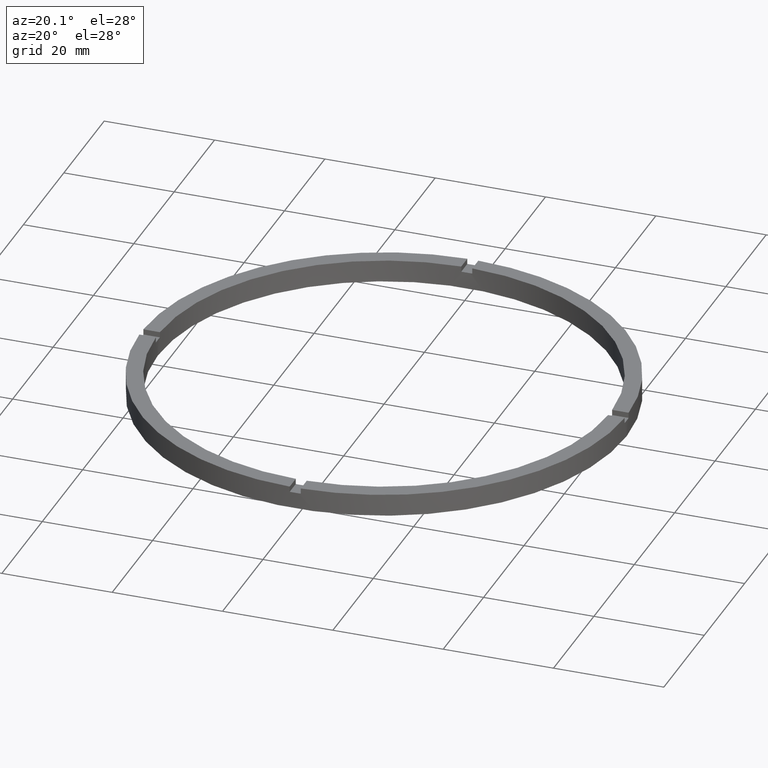
[diagram: clean part render]
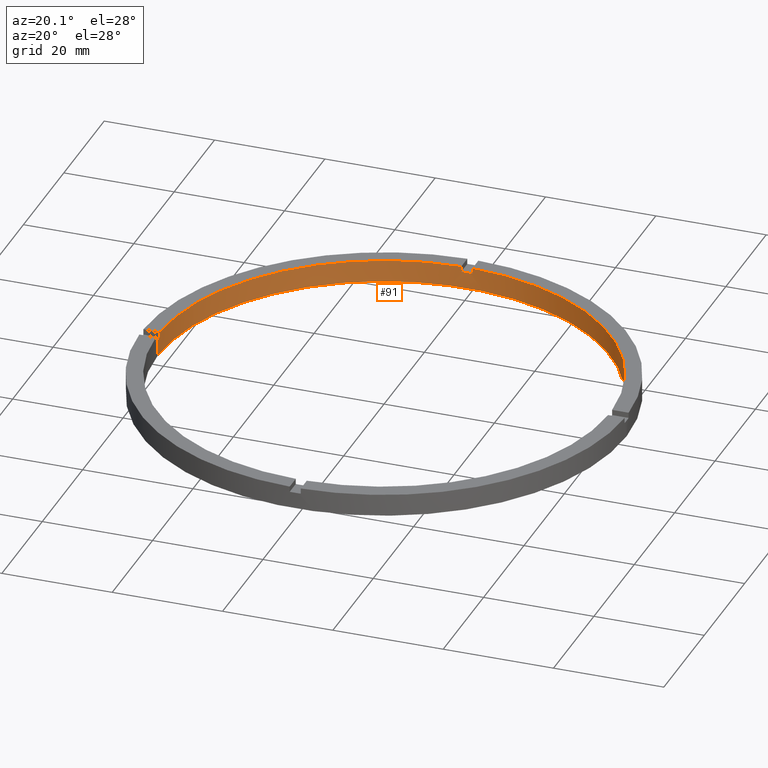
[diagram: same view with one face highlighted and labeled with its STEP entity id]
A machine part, auxiliary view. The second image highlights one B-rep face of the part: STEP entity #91.
In plain terms, the highlighted cylindrical surface (partial cylindrical patch) has radius 41 mm, axis along (-0, -0, -1).
Its self-contained STEP definition (entity closure, byte-faithful):
#9 = VERTEX_POINT ( 'NONE', #522 ) ;
#12 = VERTEX_POINT ( 'NONE', #458 ) ;
#16 = VECTOR ( 'NONE', #32, 1000.000000000000000 ) ;
#22 = LINE ( 'NONE', #158, #287 ) ;
#32 = DIRECTION ( 'NONE',  ( -0.000000000000000000, -0.000000000000000000, -1.000000000000000000 ) ) ;
#34 = AXIS2_PLACEMENT_3D ( 'NONE', #119, #299, #233 ) ;
#40 = VECTOR ( 'NONE', #370, 1000.000000000000000 ) ;
#47 = EDGE_CURVE ( 'NONE', #90, #531, #578, .T. ) ;
#49 = AXIS2_PLACEMENT_3D ( 'NONE', #106, #613, #631 ) ;
#62 = CIRCLE ( 'NONE', #34, 41.00000000000000000 ) ;
#66 = CYLINDRICAL_SURFACE ( 'NONE', #658, 41.00000000000000000 ) ;
#73 = DIRECTION ( 'NONE',  ( 0.000000000000000000, -0.000000000000000000, 1.000000000000000000 ) ) ;
#77 = LINE ( 'NONE', #430, #591 ) ;
#80 = CARTESIAN_POINT ( 'NONE',  ( 0.000000000000000000, 0.000000000000000000, 0.000000000000000000 ) ) ;
#82 = CARTESIAN_POINT ( 'NONE',  ( -41.00000000000000000, 0.000000000000000000, 0.000000000000000000 ) ) ;
#90 = VERTEX_POINT ( 'NONE', #102 ) ;
#91 = ADVANCED_FACE ( 'NONE', ( #579 ), #66, .F. ) ;
#94 = EDGE_CURVE ( 'NONE', #12, #9, #308, .T. ) ;
#97 = DIRECTION ( 'NONE',  ( 1.000000000000000000, 0.000000000000000000, 0.000000000000000000 ) ) ;
#100 = EDGE_CURVE ( 'NONE', #187, #9, #546, .T. ) ;
#102 = CARTESIAN_POINT ( 'NONE',  ( -40.98780306383839900, 0.9999999999999711342, 3.000000000000000000 ) ) ;
#106 = CARTESIAN_POINT ( 'NONE',  ( 0.000000000000000000, 0.000000000000000000, 3.000000000000000000 ) ) ;
#115 = DIRECTION ( 'NONE',  ( 1.000000000000000000, 0.000000000000000000, 0.000000000000000000 ) ) ;
#119 = CARTESIAN_POINT ( 'NONE',  ( 0.000000000000000000, 0.000000000000000000, 4.000000000000000000 ) ) ;
#133 = CARTESIAN_POINT ( 'NONE',  ( -40.98780306383839900, 0.9999999999999711342, 4.000000000000000000 ) ) ;
#142 = DIRECTION ( 'NONE',  ( 0.000000000000000000, 0.000000000000000000, 1.000000000000000000 ) ) ;
#148 = VERTEX_POINT ( 'NONE', #676 ) ;
#155 = EDGE_CURVE ( 'NONE', #12, #148, #288, .T. ) ;
#158 = CARTESIAN_POINT ( 'NONE',  ( 40.98780306383840610, 0.9999999999998434586, 4.000000000000000000 ) ) ;
#168 = ORIENTED_EDGE ( 'NONE', *, *, #523, .F. ) ;
#169 = EDGE_CURVE ( 'NONE', #207, #705, #293, .T. ) ;
#170 = ORIENTED_EDGE ( 'NONE', *, *, #47, .T. ) ;
#173 = ORIENTED_EDGE ( 'NONE', *, *, #518, .T. ) ;
#175 = VERTEX_POINT ( 'NONE', #702 ) ;
#187 = VERTEX_POINT ( 'NONE', #461 ) ;
#207 = VERTEX_POINT ( 'NONE', #656 ) ;
#225 = CARTESIAN_POINT ( 'NONE',  ( -1.000000000000025979, 40.98780306383839900, 4.000000000000000000 ) ) ;
#227 = VERTEX_POINT ( 'NONE', #561 ) ;
#233 = DIRECTION ( 'NONE',  ( 1.000000000000000000, 0.000000000000000000, 0.000000000000000000 ) ) ;
#257 = ORIENTED_EDGE ( 'NONE', *, *, #100, .T. ) ;
#268 = EDGE_CURVE ( 'NONE', #779, #451, #62, .T. ) ;
#270 = LINE ( 'NONE', #375, #16 ) ;
#271 = ORIENTED_EDGE ( 'NONE', *, *, #697, .F. ) ;
#272 = CARTESIAN_POINT ( 'NONE',  ( 0.000000000000000000, 0.000000000000000000, 3.000000000000000000 ) ) ;
#287 = VECTOR ( 'NONE', #354, 1000.000000000000000 ) ;
#288 = CIRCLE ( 'NONE', #477, 41.00000000000000000 ) ;
#293 = CIRCLE ( 'NONE', #654, 41.00000000000000000 ) ;
#294 = LINE ( 'NONE', #133, #563 ) ;
#299 = DIRECTION ( 'NONE',  ( 0.000000000000000000, 0.000000000000000000, 1.000000000000000000 ) ) ;
#300 = CIRCLE ( 'NONE', #365, 41.00000000000000000 ) ;
#301 = DIRECTION ( 'NONE',  ( 0.000000000000000000, 0.000000000000000000, 1.000000000000000000 ) ) ;
#308 = LINE ( 'NONE', #341, #40 ) ;
#341 = CARTESIAN_POINT ( 'NONE',  ( 0.9999999999999740208, 40.98780306383839900, 4.000000000000000000 ) ) ;
#342 = CARTESIAN_POINT ( 'NONE',  ( 0.000000000000000000, 0.000000000000000000, 4.000000000000000000 ) ) ;
#347 = DIRECTION ( 'NONE',  ( 1.000000000000000000, 0.000000000000000000, 0.000000000000000000 ) ) ;
#354 = DIRECTION ( 'NONE',  ( -0.000000000000000000, -0.000000000000000000, -1.000000000000000000 ) ) ;
#362 = DIRECTION ( 'NONE',  ( 1.000000000000000000, 0.000000000000000000, 0.000000000000000000 ) ) ;
#364 = CARTESIAN_POINT ( 'NONE',  ( 0.000000000000000000, 0.000000000000000000, 3.000000000000000000 ) ) ;
#365 = AXIS2_PLACEMENT_3D ( 'NONE', #364, #623, #97 ) ;
#366 = EDGE_CURVE ( 'NONE', #531, #705, #77, .T. ) ;
#370 = DIRECTION ( 'NONE',  ( 0.000000000000000000, 0.000000000000000000, 1.000000000000000000 ) ) ;
#374 = VECTOR ( 'NONE', #532, 1000.000000000000000 ) ;
#375 = CARTESIAN_POINT ( 'NONE',  ( -1.000000000000025979, 40.98780306383839900, 4.000000000000000000 ) ) ;
#400 = DIRECTION ( 'NONE',  ( 0.000000000000000000, 0.000000000000000000, 1.000000000000000000 ) ) ;
#403 = ORIENTED_EDGE ( 'NONE', *, *, #169, .F. ) ;
#424 = ORIENTED_EDGE ( 'NONE', *, *, #599, .F. ) ;
#426 = ORIENTED_EDGE ( 'NONE', *, *, #155, .T. ) ;
#429 = EDGE_LOOP ( 'NONE', ( #424, #173, #271, #257, #435, #426, #757, #573, #168, #170, #464, #403 ) ) ;
#430 = CARTESIAN_POINT ( 'NONE',  ( -41.00000000000000000, 0.000000000000000000, 4.000000000000000000 ) ) ;
#435 = ORIENTED_EDGE ( 'NONE', *, *, #94, .F. ) ;
#446 = CARTESIAN_POINT ( 'NONE',  ( 41.00000000000000000, 5.021051876504148963E-15, 4.000000000000000000 ) ) ;
#451 = VERTEX_POINT ( 'NONE', #612 ) ;
#458 = CARTESIAN_POINT ( 'NONE',  ( 0.9999999999999740208, 40.98780306383839900, 3.000000000000000000 ) ) ;
#461 = CARTESIAN_POINT ( 'NONE',  ( 40.98780306383840610, 0.9999999999998434586, 4.000000000000000000 ) ) ;
#464 = ORIENTED_EDGE ( 'NONE', *, *, #366, .T. ) ;
#477 = AXIS2_PLACEMENT_3D ( 'NONE', #272, #73, #115 ) ;
#518 = EDGE_CURVE ( 'NONE', #227, #175, #300, .T. ) ;
#522 = CARTESIAN_POINT ( 'NONE',  ( 0.9999999999999740208, 40.98780306383839900, 4.000000000000000000 ) ) ;
#523 = EDGE_CURVE ( 'NONE', #90, #451, #294, .T. ) ;
#531 = VERTEX_POINT ( 'NONE', #669 ) ;
#532 = DIRECTION ( 'NONE',  ( -0.000000000000000000, -0.000000000000000000, -1.000000000000000000 ) ) ;
#546 = CIRCLE ( 'NONE', #672, 41.00000000000000000 ) ;
#547 = LINE ( 'NONE', #446, #374 ) ;
#561 = CARTESIAN_POINT ( 'NONE',  ( 41.00000000000000000, 5.021051876504148963E-15, 3.000000000000000000 ) ) ;
#563 = VECTOR ( 'NONE', #400, 1000.000000000000000 ) ;
#573 = ORIENTED_EDGE ( 'NONE', *, *, #268, .T. ) ;
#578 = CIRCLE ( 'NONE', #49, 41.00000000000000000 ) ;
#579 = FACE_OUTER_BOUND ( 'NONE', #429, .T. ) ;
#582 = CARTESIAN_POINT ( 'NONE',  ( 0.000000000000000000, 0.000000000000000000, 4.000000000000000000 ) ) ;
#591 = VECTOR ( 'NONE', #678, 1000.000000000000000 ) ;
#592 = DIRECTION ( 'NONE',  ( -0.000000000000000000, -0.000000000000000000, -1.000000000000000000 ) ) ;
#599 = EDGE_CURVE ( 'NONE', #227, #207, #547, .T. ) ;
#612 = CARTESIAN_POINT ( 'NONE',  ( -40.98780306383839900, 0.9999999999999711342, 4.000000000000000000 ) ) ;
#613 = DIRECTION ( 'NONE',  ( 0.000000000000000000, 0.000000000000000000, 1.000000000000000000 ) ) ;
#623 = DIRECTION ( 'NONE',  ( 0.000000000000000000, 0.000000000000000000, 1.000000000000000000 ) ) ;
#627 = DIRECTION ( 'NONE',  ( -1.000000000000000000, 0.000000000000000000, 0.000000000000000000 ) ) ;
#631 = DIRECTION ( 'NONE',  ( 1.000000000000000000, 0.000000000000000000, 0.000000000000000000 ) ) ;
#649 = EDGE_CURVE ( 'NONE', #779, #148, #270, .T. ) ;
#654 = AXIS2_PLACEMENT_3D ( 'NONE', #80, #301, #362 ) ;
#656 = CARTESIAN_POINT ( 'NONE',  ( 41.00000000000000000, 5.021051876504148963E-15, 0.000000000000000000 ) ) ;
#658 = AXIS2_PLACEMENT_3D ( 'NONE', #582, #592, #627 ) ;
#669 = CARTESIAN_POINT ( 'NONE',  ( -41.00000000000000000, 0.000000000000000000, 3.000000000000000000 ) ) ;
#672 = AXIS2_PLACEMENT_3D ( 'NONE', #342, #142, #347 ) ;
#676 = CARTESIAN_POINT ( 'NONE',  ( -1.000000000000025979, 40.98780306383839900, 3.000000000000000000 ) ) ;
#678 = DIRECTION ( 'NONE',  ( -0.000000000000000000, -0.000000000000000000, -1.000000000000000000 ) ) ;
#697 = EDGE_CURVE ( 'NONE', #187, #175, #22, .T. ) ;
#702 = CARTESIAN_POINT ( 'NONE',  ( 40.98780306383840610, 0.9999999999998434586, 3.000000000000000000 ) ) ;
#705 = VERTEX_POINT ( 'NONE', #82 ) ;
#757 = ORIENTED_EDGE ( 'NONE', *, *, #649, .F. ) ;
#779 = VERTEX_POINT ( 'NONE', #225 ) ;